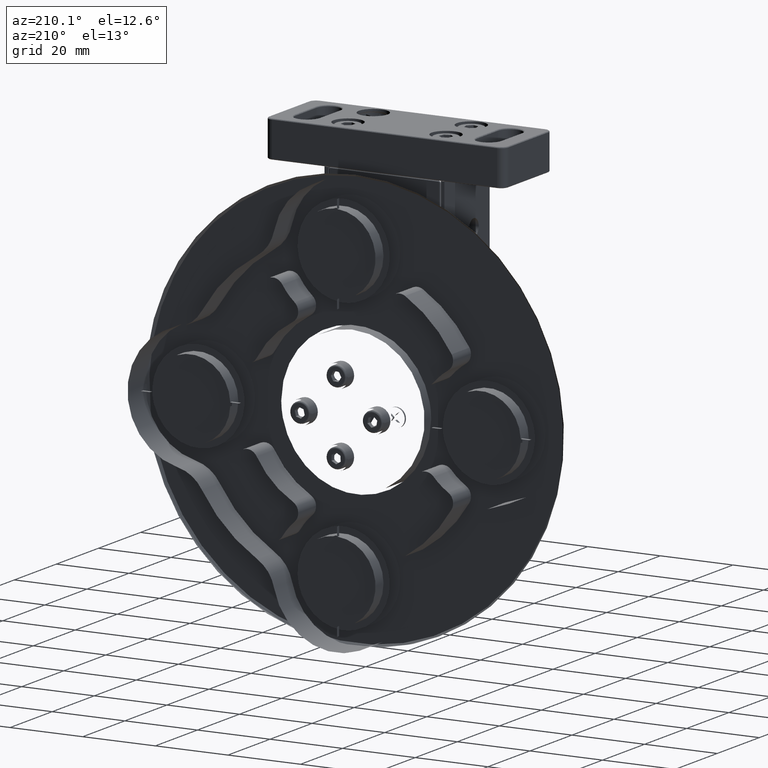
[diagram: clean part render]
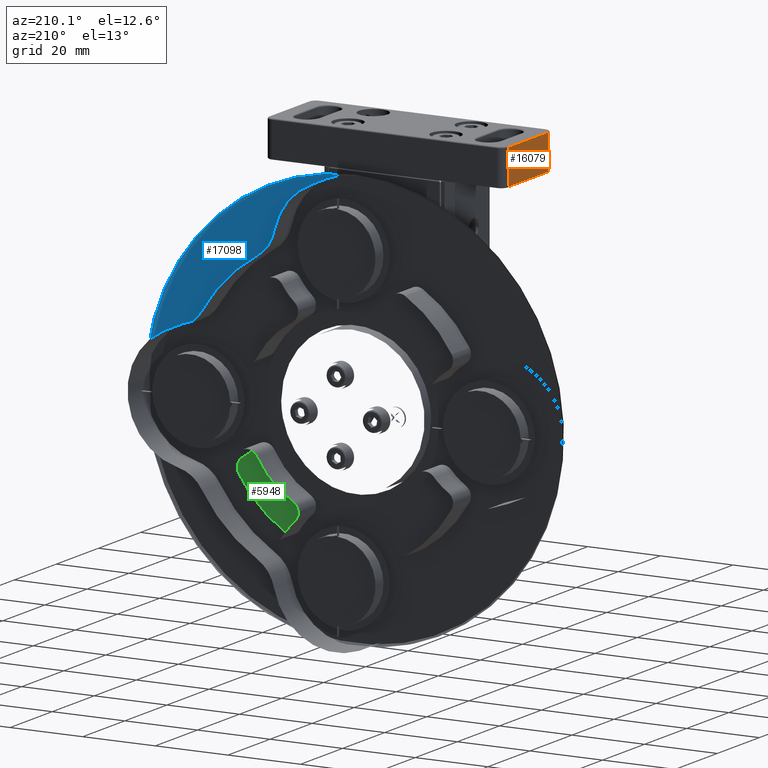
[diagram: same view with three faces highlighted in distinct colors, each labeled with its STEP entity id]
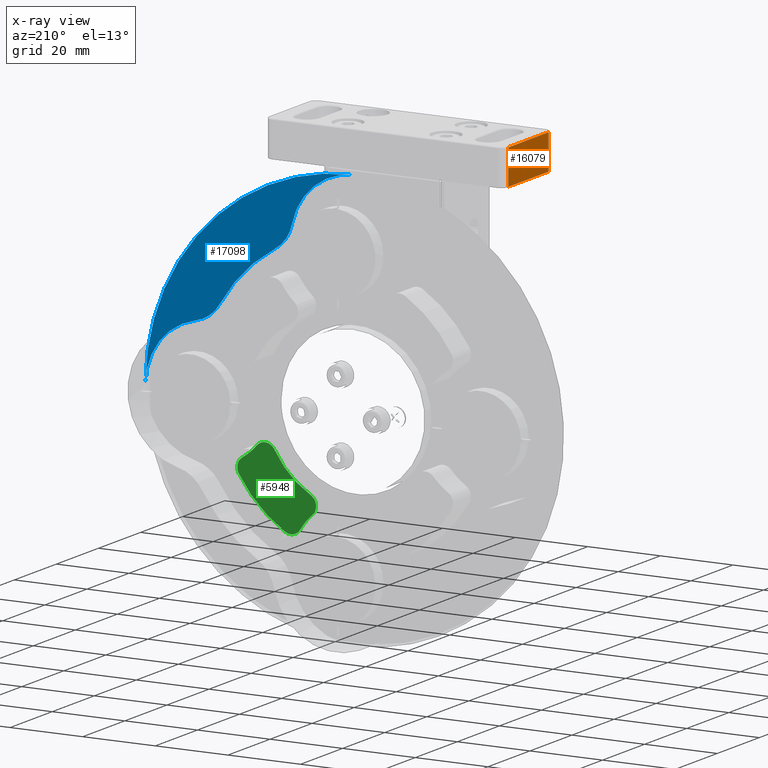
[diagram: x-ray of the same camera — body ghosted, the three highlighted faces saturated]
A machine part, auxiliary view with three faces highlighted in distinct colors.
The next image is the same camera in x-ray (body ghosted, the three faces saturated) — at least one of them is partly hidden behind the body in this view.
Their STEP definitions:

[orange] entity #16079 — the highlighted planar face has unit normal (1, 0, 0).
#324 = ORIENTED_EDGE ( 'NONE', *, *, #17060, .F. ) ;
#497 = LINE ( 'NONE', #13660, #3565 ) ;
#595 = LINE ( 'NONE', #6101, #17145 ) ;
#620 = CARTESIAN_POINT ( 'NONE',  ( -65.19565927654610960, 6.163482110547995774, 125.2000000000000028 ) ) ;
#2780 = CARTESIAN_POINT ( 'NONE',  ( -65.19565927654610960, 17.66348211054799577, 125.0000000000000000 ) ) ;
#2956 = PLANE ( 'NONE',  #9377 ) ;
#3005 = ORIENTED_EDGE ( 'NONE', *, *, #6185, .F. ) ;
#3174 = CARTESIAN_POINT ( 'NONE',  ( -65.19565927654610960, -3.336517889452004226, 134.8000000000000114 ) ) ;
#3565 = VECTOR ( 'NONE', #4223, 1000.000000000000000 ) ;
#4004 = VERTEX_POINT ( 'NONE', #3174 ) ;
#4130 = CARTESIAN_POINT ( 'NONE',  ( -65.19565927654105053, -3.336517889452004226, 125.2000000000016371 ) ) ;
#4223 = DIRECTION ( 'NONE',  ( 0.000000000000000000, -1.000000000000000000, -0.000000000000000000 ) ) ;
#4304 = EDGE_LOOP ( 'NONE', ( #15989, #3005, #7624, #324 ) ) ;
#4965 = LINE ( 'NONE', #10393, #8921 ) ;
#6030 = EDGE_CURVE ( 'NONE', #13178, #13553, #12807, .T. ) ;
#6101 = CARTESIAN_POINT ( 'NONE',  ( -65.19565927654610960, -3.336517889452002450, 125.0000000000000000 ) ) ;
#6185 = EDGE_CURVE ( 'NONE', #13553, #14870, #4965, .T. ) ;
#6961 = FACE_OUTER_BOUND ( 'NONE', #4304, .T. ) ;
#7624 = ORIENTED_EDGE ( 'NONE', *, *, #6030, .F. ) ;
#8421 = EDGE_CURVE ( 'NONE', #14870, #4004, #497, .T. ) ;
#8921 = VECTOR ( 'NONE', #15808, 1000.000000000000000 ) ;
#9377 = AXIS2_PLACEMENT_3D ( 'NONE', #2780, #16375, #9897 ) ;
#9897 = DIRECTION ( 'NONE',  ( 0.000000000000000000, 0.000000000000000000, -1.000000000000000000 ) ) ;
#10393 = CARTESIAN_POINT ( 'NONE',  ( -65.19565927654610960, 15.66348211054799755, 125.0000000000000000 ) ) ;
#10712 = CARTESIAN_POINT ( 'NONE',  ( -65.19565927654105053, 15.66348211054799755, 134.7999999999960892 ) ) ;
#12048 = VECTOR ( 'NONE', #13952, 1000.000000000000000 ) ;
#12807 = LINE ( 'NONE', #620, #12048 ) ;
#13178 = VERTEX_POINT ( 'NONE', #4130 ) ;
#13553 = VERTEX_POINT ( 'NONE', #14148 ) ;
#13660 = CARTESIAN_POINT ( 'NONE',  ( -65.19565927654610960, 17.66348211054799577, 134.8000000000000114 ) ) ;
#13952 = DIRECTION ( 'NONE',  ( 0.000000000000000000, 1.000000000000000000, -0.000000000000000000 ) ) ;
#14148 = CARTESIAN_POINT ( 'NONE',  ( -65.19565927653601989, 15.66348211054799755, 125.2000000000476092 ) ) ;
#14870 = VERTEX_POINT ( 'NONE', #10712 ) ;
#15808 = DIRECTION ( 'NONE',  ( 0.000000000000000000, 0.000000000000000000, 1.000000000000000000 ) ) ;
#15989 = ORIENTED_EDGE ( 'NONE', *, *, #8421, .F. ) ;
#16079 = ADVANCED_FACE ( 'NONE', ( #6961 ), #2956, .F. ) ;
#16375 = DIRECTION ( 'NONE',  ( 1.000000000000000000, 0.000000000000000000, 0.000000000000000000 ) ) ;
#16846 = DIRECTION ( 'NONE',  ( 0.000000000000000000, 0.000000000000000000, -1.000000000000000000 ) ) ;
#17060 = EDGE_CURVE ( 'NONE', #4004, #13178, #595, .T. ) ;
#17145 = VECTOR ( 'NONE', #16846, 1000.000000000000000 ) ;

[blue] entity #17098 — the highlighted planar face has unit normal (-0, 1, 0).
#475 = VERTEX_POINT ( 'NONE', #17176 ) ;
#503 = CARTESIAN_POINT ( 'NONE',  ( -32.19565927654613091, 32.06348211055967568, 69.99999999999998579 ) ) ;
#559 = DIRECTION ( 'NONE',  ( -3.488278094132890012E-29, 1.000000000000000000, -0.000000000000000000 ) ) ;
#637 = CARTESIAN_POINT ( 'NONE',  ( -32.19565927666613447, 32.06348211055967568, 127.5000000000000000 ) ) ;
#689 = AXIS2_PLACEMENT_3D ( 'NONE', #10020, #10109, #2091 ) ;
#1147 = DIRECTION ( 'NONE',  ( 3.488278094132890012E-29, -1.000000000000000000, -0.000000000000000000 ) ) ;
#1237 = EDGE_CURVE ( 'NONE', #16347, #12652, #5907, .T. ) ;
#1527 = EDGE_CURVE ( 'NONE', #12652, #14022, #16734, .T. ) ;
#1608 = CARTESIAN_POINT ( 'NONE',  ( 4.848739308313983365, 32.06348211055967568, 91.83374758226388224 ) ) ;
#1863 = CARTESIAN_POINT ( 'NONE',  ( -15.07024626819899282, 32.06348211055967568, 113.6014204545811879 ) ) ;
#1976 = CIRCLE ( 'NONE', #16443, 10.00000000000000178 ) ;
#2058 = DIRECTION ( 'NONE',  ( 1.000000000000000000, 0.000000000000000000, -2.775557561562891351E-15 ) ) ;
#2091 = DIRECTION ( 'NONE',  ( -1.000000000000000000, -3.488278094132890012E-29, 0.000000000000000000 ) ) ;
#2254 = DIRECTION ( 'NONE',  ( 3.488278094132890012E-29, -1.000000000000000000, -0.000000000000000000 ) ) ;
#2562 = DIRECTION ( 'NONE',  ( -1.000000000000000000, 0.000000000000000000, 7.930164461608259453E-16 ) ) ;
#3603 = PLANE ( 'NONE',  #689 ) ;
#4579 = DIRECTION ( 'NONE',  ( 3.488278094132890012E-29, -1.000000000000000000, -0.000000000000000000 ) ) ;
#5309 = CARTESIAN_POINT ( 'NONE',  ( 25.30434072345389040, 32.06348211055967568, 70.00000000005998402 ) ) ;
#5685 = ORIENTED_EDGE ( 'NONE', *, *, #1527, .F. ) ;
#5907 = CIRCLE ( 'NONE', #6199, 43.00000000000000000 ) ;
#5909 = CARTESIAN_POINT ( 'NONE',  ( -32.19565927662961968, 32.06348211055967568, 109.9999999999999858 ) ) ;
#6072 = ORIENTED_EDGE ( 'NONE', *, *, #14674, .F. ) ;
#6122 = EDGE_LOOP ( 'NONE', ( #16263, #12926, #6072, #5685, #6269, #17358 ) ) ;
#6174 = EDGE_CURVE ( 'NONE', #15466, #475, #17140, .T. ) ;
#6199 = AXIS2_PLACEMENT_3D ( 'NONE', #11868, #2254, #13464 ) ;
#6269 = ORIENTED_EDGE ( 'NONE', *, *, #1237, .F. ) ;
#7787 = AXIS2_PLACEMENT_3D ( 'NONE', #503, #9751, #11002 ) ;
#8515 = AXIS2_PLACEMENT_3D ( 'NONE', #8741, #559, #2058 ) ;
#8741 = CARTESIAN_POINT ( 'NONE',  ( -5.284295977667191835, 32.06348211055967568, 115.6593750000561585 ) ) ;
#9498 = CIRCLE ( 'NONE', #7787, 57.50000000000000711 ) ;
#9751 = DIRECTION ( 'NONE',  ( 3.488278094132890012E-29, -1.000000000000000000, 0.000000000000000000 ) ) ;
#10020 = CARTESIAN_POINT ( 'NONE',  ( -32.19565927654613091, 32.06348211055967568, 69.99999999999998579 ) ) ;
#10095 = DIRECTION ( 'NONE',  ( -1.000000000000000000, 0.000000000000000000, 0.000000000000000000 ) ) ;
#10109 = DIRECTION ( 'NONE',  ( -3.488278094132890012E-29, 1.000000000000000000, 0.000000000000000000 ) ) ;
#10281 = FACE_OUTER_BOUND ( 'NONE', #6122, .T. ) ;
#10795 = AXIS2_PLACEMENT_3D ( 'NONE', #5909, #4579, #10095 ) ;
#10909 = AXIS2_PLACEMENT_3D ( 'NONE', #13332, #1147, #2562 ) ;
#11002 = DIRECTION ( 'NONE',  ( 1.000000000000000000, 0.000000000000000000, 0.000000000000000000 ) ) ;
#11868 = CARTESIAN_POINT ( 'NONE',  ( -32.19565927654613091, 32.06348211055967568, 69.99999999999998579 ) ) ;
#12501 = DIRECTION ( 'NONE',  ( -3.488278094132890012E-29, 1.000000000000000000, -0.000000000000000000 ) ) ;
#12592 = DIRECTION ( 'NONE',  ( 1.000000000000000000, 0.000000000000000000, 1.387778780781445478E-15 ) ) ;
#12652 = VERTEX_POINT ( 'NONE', #13333 ) ;
#12926 = ORIENTED_EDGE ( 'NONE', *, *, #16854, .T. ) ;
#13332 = CARTESIAN_POINT ( 'NONE',  ( 7.804340723453886852, 32.06348211055967568, 70.00000000008347456 ) ) ;
#13333 = CARTESIAN_POINT ( 'NONE',  ( -10.36191169443679527, 32.06348211055967568, 107.0443985849512103 ) ) ;
#13464 = DIRECTION ( 'NONE',  ( -1.000000000000000000, 0.000000000000000000, 0.000000000000000000 ) ) ;
#13582 = VERTEX_POINT ( 'NONE', #637 ) ;
#13924 = CIRCLE ( 'NONE', #10795, 17.50000000000000000 ) ;
#14022 = VERTEX_POINT ( 'NONE', #1863 ) ;
#14554 = EDGE_CURVE ( 'NONE', #475, #16347, #1976, .T. ) ;
#14674 = EDGE_CURVE ( 'NONE', #14022, #13582, #13924, .T. ) ;
#15466 = VERTEX_POINT ( 'NONE', #5309 ) ;
#16263 = ORIENTED_EDGE ( 'NONE', *, *, #6174, .F. ) ;
#16347 = VERTEX_POINT ( 'NONE', #1608 ) ;
#16394 = CARTESIAN_POINT ( 'NONE',  ( 13.46371572339771738, 32.06348211055967568, 96.91136329906946401 ) ) ;
#16443 = AXIS2_PLACEMENT_3D ( 'NONE', #16394, #12501, #12592 ) ;
#16734 = CIRCLE ( 'NONE', #8515, 10.00000000000000000 ) ;
#16854 = EDGE_CURVE ( 'NONE', #15466, #13582, #9498, .T. ) ;
#17098 = ADVANCED_FACE ( 'NONE', ( #10281 ), #3603, .F. ) ;
#17140 = CIRCLE ( 'NONE', #10909, 17.50000000000000355 ) ;
#17176 = CARTESIAN_POINT ( 'NONE',  ( 11.40576117796362965, 32.06348211055967568, 87.12541300852909387 ) ) ;
#17358 = ORIENTED_EDGE ( 'NONE', *, *, #14554, .F. ) ;

[green] entity #5948 — the highlighted planar face has unit normal (-0, 1, 0).
#341 = VERTEX_POINT ( 'NONE', #387 ) ;
#387 = CARTESIAN_POINT ( 'NONE',  ( -0.4225894235653630537, 32.06348211055967568, 51.04025231925259476 ) ) ;
#545 = DIRECTION ( 'NONE',  ( -3.488278094132890012E-29, 1.000000000000000000, 0.000000000000000000 ) ) ;
#856 = DIRECTION ( 'NONE',  ( 1.000000000000000000, 0.000000000000000000, 2.312964634635743450E-15 ) ) ;
#1196 = EDGE_CURVE ( 'NONE', #13885, #11932, #1931, .T. ) ;
#1270 = CARTESIAN_POINT ( 'NONE',  ( -1.417839154563827142, 32.06348211055967568, 55.12715903752742719 ) ) ;
#1318 = CIRCLE ( 'NONE', #15498, 25.00000000000000000 ) ;
#1399 = CIRCLE ( 'NONE', #11339, 17.50000000000000711 ) ;
#1483 = VERTEX_POINT ( 'NONE', #13806 ) ;
#1931 = CIRCLE ( 'NONE', #11886, 2.999999999999999112 ) ;
#2178 = CARTESIAN_POINT ( 'NONE',  ( -18.72528705690213613, 32.06348211055967568, 45.45312500002809486 ) ) ;
#2193 = DIRECTION ( 'NONE',  ( -1.000000000000000000, 0.000000000000000000, 0.000000000000000000 ) ) ;
#2268 = DIRECTION ( 'NONE',  ( -3.488278094132890012E-29, 1.000000000000000000, -0.000000000000000000 ) ) ;
#2523 = ORIENTED_EDGE ( 'NONE', *, *, #3066, .T. ) ;
#3066 = EDGE_CURVE ( 'NONE', #5254, #11338, #4859, .T. ) ;
#3222 = DIRECTION ( 'NONE',  ( -1.000000000000000000, 0.000000000000000000, 0.000000000000000000 ) ) ;
#3712 = DIRECTION ( 'NONE',  ( -3.488278094132890012E-29, 1.000000000000000000, 0.000000000000000000 ) ) ;
#3750 = VERTEX_POINT ( 'NONE', #3905 ) ;
#3905 = CARTESIAN_POINT ( 'NONE',  ( -10.27880659794957374, 32.06348211055967568, 57.97288194683794416 ) ) ;
#3916 = EDGE_CURVE ( 'NONE', #341, #13885, #16196, .T. ) ;
#4239 = CARTESIAN_POINT ( 'NONE',  ( -32.19565927654613091, 32.06348211055967568, 69.99999999999998579 ) ) ;
#4792 = ORIENTED_EDGE ( 'NONE', *, *, #1196, .F. ) ;
#4859 = CIRCLE ( 'NONE', #14795, 17.50000000000000355 ) ;
#5254 = VERTEX_POINT ( 'NONE', #1270 ) ;
#5498 = AXIS2_PLACEMENT_3D ( 'NONE', #2178, #2268, #856 ) ;
#5806 = EDGE_CURVE ( 'NONE', #3750, #11338, #17125, .T. ) ;
#5948 = ADVANCED_FACE ( 'NONE', ( #6040 ), #12718, .F. ) ;
#6040 = FACE_OUTER_BOUND ( 'NONE', #9343, .T. ) ;
#6268 = AXIS2_PLACEMENT_3D ( 'NONE', #4239, #15090, #13506 ) ;
#7550 = CARTESIAN_POINT ( 'NONE',  ( -12.19565927654608473, 32.06348211055967568, 70.00000000004172307 ) ) ;
#7578 = CARTESIAN_POINT ( 'NONE',  ( -32.19565927646255687, 32.06348211055967568, 29.99999999999997868 ) ) ;
#8096 = CARTESIAN_POINT ( 'NONE',  ( -7.648784276517963221, 32.06348211055967568, 56.52962778045850456 ) ) ;
#8612 = DIRECTION ( 'NONE',  ( -1.000000000000000000, 0.000000000000000000, 0.000000000000000000 ) ) ;
#9343 = EDGE_LOOP ( 'NONE', ( #11429, #14120, #2523, #12469, #17588, #10048, #9440, #4792 ) ) ;
#9440 = ORIENTED_EDGE ( 'NONE', *, *, #15235, .T. ) ;
#10048 = ORIENTED_EDGE ( 'NONE', *, *, #17154, .F. ) ;
#10132 = DIRECTION ( 'NONE',  ( -1.000000000000000000, -3.488278094132890012E-29, 0.000000000000000000 ) ) ;
#10306 = EDGE_CURVE ( 'NONE', #3750, #1483, #1318, .T. ) ;
#10468 = CARTESIAN_POINT ( 'NONE',  ( -2.998784276509726343, 32.06348211055967568, 52.57752915823210316 ) ) ;
#10607 = AXIS2_PLACEMENT_3D ( 'NONE', #7550, #12979, #10132 ) ;
#10621 = DIRECTION ( 'NONE',  ( -3.488278094132890012E-29, 1.000000000000000000, 0.000000000000000000 ) ) ;
#10717 = EDGE_CURVE ( 'NONE', #5254, #341, #16069, .T. ) ;
#10796 = CARTESIAN_POINT ( 'NONE',  ( -14.77318843465637244, 32.06348211055967568, 40.80312500003635279 ) ) ;
#10973 = AXIS2_PLACEMENT_3D ( 'NONE', #10468, #3712, #2193 ) ;
#11198 = DIRECTION ( 'NONE',  ( -3.488278094132890012E-29, 1.000000000000000000, -0.000000000000000000 ) ) ;
#11219 = CARTESIAN_POINT ( 'NONE',  ( -5.387351349692814040, 32.06348211055967568, 58.50090176381825557 ) ) ;
#11338 = VERTEX_POINT ( 'NONE', #11219 ) ;
#11339 = AXIS2_PLACEMENT_3D ( 'NONE', #7578, #15311, #3222 ) ;
#11429 = ORIENTED_EDGE ( 'NONE', *, *, #3916, .F. ) ;
#11459 = AXIS2_PLACEMENT_3D ( 'NONE', #8096, #11198, #13861 ) ;
#11548 = DIRECTION ( 'NONE',  ( -3.488278094132890012E-29, 1.000000000000000000, 0.000000000000000000 ) ) ;
#11886 = AXIS2_PLACEMENT_3D ( 'NONE', #10796, #10621, #13115 ) ;
#11932 = VERTEX_POINT ( 'NONE', #15000 ) ;
#12242 = CARTESIAN_POINT ( 'NONE',  ( -20.69656104025244403, 32.06348211055967568, 43.19169207319473003 ) ) ;
#12469 = ORIENTED_EDGE ( 'NONE', *, *, #5806, .F. ) ;
#12589 = CARTESIAN_POINT ( 'NONE',  ( -13.23591159566610287, 32.06348211055967568, 38.22693014709838621 ) ) ;
#12718 = PLANE ( 'NONE',  #10607 ) ;
#12979 = DIRECTION ( 'NONE',  ( -3.488278094132890012E-29, 1.000000000000000000, 0.000000000000000000 ) ) ;
#13115 = DIRECTION ( 'NONE',  ( -1.000000000000000000, 0.000000000000000000, 0.000000000000000000 ) ) ;
#13181 = CIRCLE ( 'NONE', #5498, 2.999999999999999112 ) ;
#13506 = DIRECTION ( 'NONE',  ( -1.000000000000000000, 0.000000000000000000, 0.000000000000000000 ) ) ;
#13806 = CARTESIAN_POINT ( 'NONE',  ( -20.16854122329256072, 32.06348211055967568, 48.08314732145365156 ) ) ;
#13861 = DIRECTION ( 'NONE',  ( 1.000000000000000000, 0.000000000000000000, -2.312964634635743450E-15 ) ) ;
#13885 = VERTEX_POINT ( 'NONE', #12589 ) ;
#14034 = CARTESIAN_POINT ( 'NONE',  ( 7.804340723453886852, 32.06348211055967568, 70.00000000008347456 ) ) ;
#14120 = ORIENTED_EDGE ( 'NONE', *, *, #10717, .F. ) ;
#14319 = DIRECTION ( 'NONE',  ( -1.000000000000000000, 0.000000000000000000, 0.000000000000000000 ) ) ;
#14405 = CARTESIAN_POINT ( 'NONE',  ( -32.19565927654613091, 32.06348211055967568, 69.99999999999998579 ) ) ;
#14482 = VERTEX_POINT ( 'NONE', #12242 ) ;
#14795 = AXIS2_PLACEMENT_3D ( 'NONE', #14034, #11548, #8612 ) ;
#15000 = CARTESIAN_POINT ( 'NONE',  ( -17.32281831394508842, 32.06348211055967568, 39.22217987807981388 ) ) ;
#15090 = DIRECTION ( 'NONE',  ( -3.488278094132890012E-29, 1.000000000000000000, 0.000000000000000000 ) ) ;
#15235 = EDGE_CURVE ( 'NONE', #14482, #11932, #1399, .T. ) ;
#15311 = DIRECTION ( 'NONE',  ( -3.488278094132890012E-29, 1.000000000000000000, 0.000000000000000000 ) ) ;
#15498 = AXIS2_PLACEMENT_3D ( 'NONE', #14405, #545, #14319 ) ;
#16069 = CIRCLE ( 'NONE', #10973, 3.000000000000000444 ) ;
#16196 = CIRCLE ( 'NONE', #6268, 37.00000000000000000 ) ;
#17125 = CIRCLE ( 'NONE', #11459, 2.999999999999999112 ) ;
#17154 = EDGE_CURVE ( 'NONE', #14482, #1483, #13181, .T. ) ;
#17588 = ORIENTED_EDGE ( 'NONE', *, *, #10306, .T. ) ;